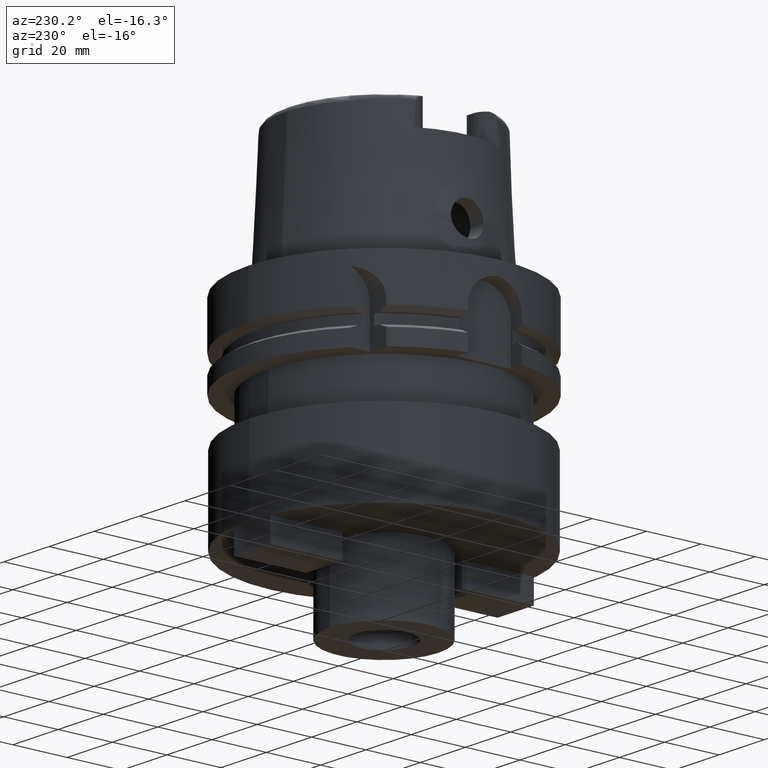
[diagram: clean part render]
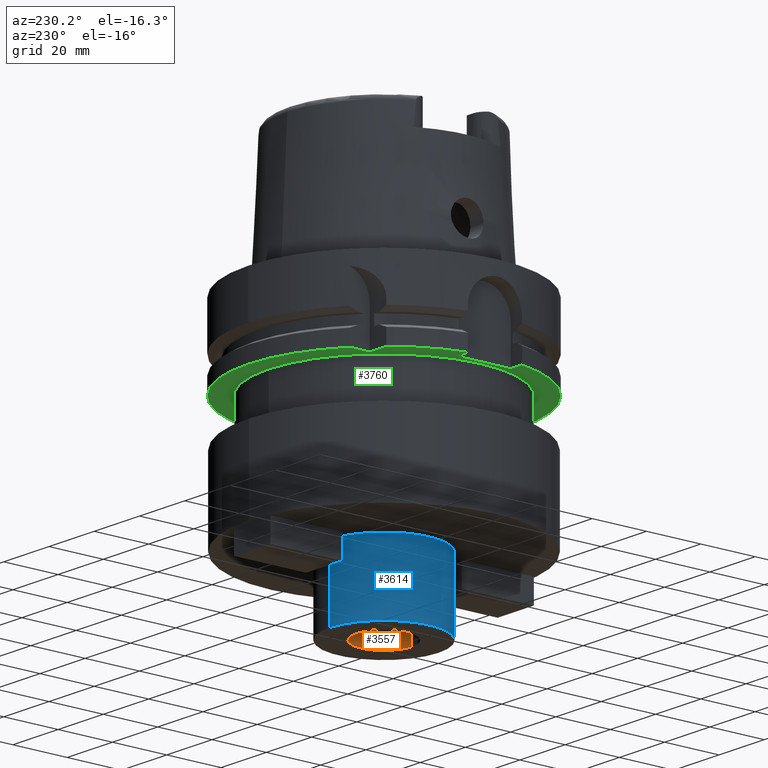
[diagram: same view with three faces highlighted in distinct colors, each labeled with its STEP entity id]
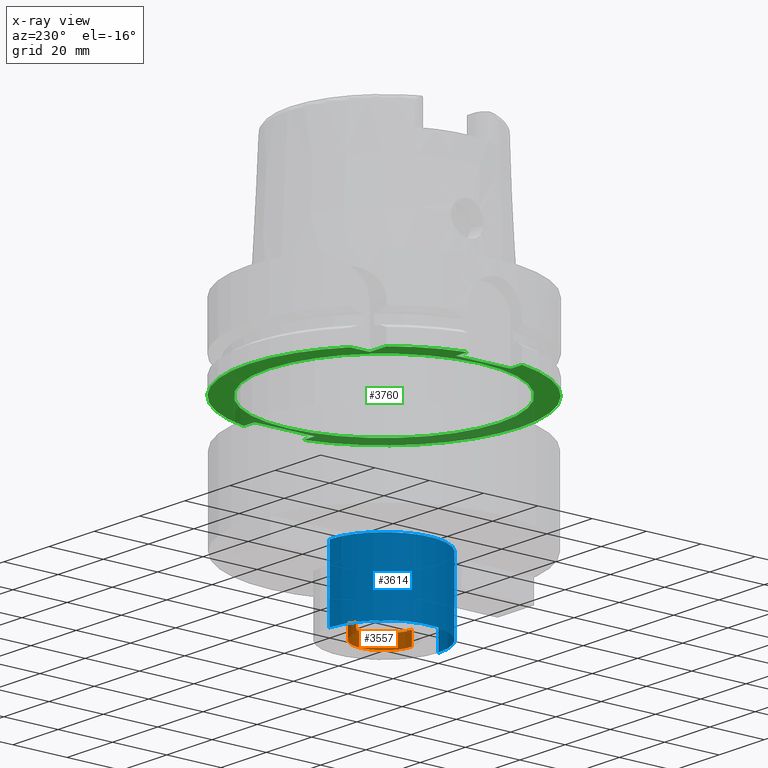
[diagram: x-ray of the same camera — body ghosted, the three highlighted faces saturated]
A machine part, auxiliary view with three faces highlighted in distinct colors.
The next image is the same camera in x-ray (body ghosted, the three faces saturated) — at least one of them is partly hidden behind the body in this view.
Their STEP definitions:

[orange] entity #3557 — the highlighted cylindrical surface (edge-blend (fillet) strip) has radius 10.25 mm, axis along (0, 0, -1).
#1108=CARTESIAN_POINT('',(0.E0,1.929431032057E-14,-9.6E1));
#1109=DIRECTION('',(0.E0,0.E0,1.E0));
#1110=DIRECTION('',(0.E0,-1.E0,0.E0));
#1111=AXIS2_PLACEMENT_3D('',#1108,#1109,#1110);
#1140=DIRECTION('',(0.E0,0.E0,1.E0));
#1141=VECTOR('',#1140,5.E0);
#1142=CARTESIAN_POINT('',(0.E0,1.025E1,-1.01E2));
#1143=LINE('',#1142,#1141);
#1147=DIRECTION('',(0.E0,0.E0,1.E0));
#1148=VECTOR('',#1147,5.E0);
#1149=CARTESIAN_POINT('',(0.E0,-1.025E1,-1.01E2));
#1150=LINE('',#1149,#1148);
#1178=CARTESIAN_POINT('',(0.E0,1.929431032057E-14,-1.01E2));
#1179=DIRECTION('',(0.E0,0.E0,-1.E0));
#1180=DIRECTION('',(0.E0,1.E0,0.E0));
#1181=AXIS2_PLACEMENT_3D('',#1178,#1179,#1180);
#2600=CARTESIAN_POINT('',(0.E0,-1.025E1,-1.01E2));
#2601=CARTESIAN_POINT('',(0.E0,1.025E1,-1.01E2));
#2602=VERTEX_POINT('',#2600);
#2603=VERTEX_POINT('',#2601);
#2604=CARTESIAN_POINT('',(0.E0,1.025E1,-9.6E1));
#2605=VERTEX_POINT('',#2604);
#2606=CARTESIAN_POINT('',(0.E0,-1.025E1,-9.6E1));
#2607=VERTEX_POINT('',#2606);
#3543=CARTESIAN_POINT('',(0.E0,1.929431032057E-14,5.755E1));
#3544=DIRECTION('',(0.E0,0.E0,-1.E0));
#3545=DIRECTION('',(0.E0,-1.E0,0.E0));
#3546=AXIS2_PLACEMENT_3D('',#3543,#3544,#3545);
#3547=CYLINDRICAL_SURFACE('',#3546,1.025E1);
#3549=ORIENTED_EDGE('',*,*,#3548,.T.);
#3550=ORIENTED_EDGE('',*,*,#3532,.F.);
#3552=ORIENTED_EDGE('',*,*,#3551,.F.);
#3554=ORIENTED_EDGE('',*,*,#3553,.F.);
#3555=EDGE_LOOP('',(#3549,#3550,#3552,#3554));
#3556=FACE_OUTER_BOUND('',#3555,.F.);
#1112=CIRCLE('',#1111,1.025E1);
#1182=CIRCLE('',#1181,1.025E1);
#3532=EDGE_CURVE('',#2607,#2605,#1112,.T.);
#3548=EDGE_CURVE('',#2603,#2605,#1143,.T.);
#3551=EDGE_CURVE('',#2602,#2607,#1150,.T.);
#3553=EDGE_CURVE('',#2603,#2602,#1182,.T.);
#3557=ADVANCED_FACE('',(#3556),#3547,.F.);

[blue] entity #3614 — the highlighted cylindrical surface (partial cylindrical patch) has radius 20 mm, axis along (0, 0, -1).
#1162=CARTESIAN_POINT('',(0.E0,1.929431032057E-14,-1.01E2));
#1163=DIRECTION('',(0.E0,0.E0,1.E0));
#1164=DIRECTION('',(0.E0,1.E0,0.E0));
#1165=AXIS2_PLACEMENT_3D('',#1162,#1163,#1164);
#1186=DIRECTION('',(0.E0,0.E0,-1.E0));
#1187=VECTOR('',#1186,2.6E1);
#1188=CARTESIAN_POINT('',(0.E0,2.E1,-7.5E1));
#1189=LINE('',#1188,#1187);
#1193=DIRECTION('',(0.E0,0.E0,-1.E0));
#1194=VECTOR('',#1193,2.6E1);
#1195=CARTESIAN_POINT('',(0.E0,-2.E1,-7.5E1));
#1196=LINE('',#1195,#1194);
#1216=CARTESIAN_POINT('',(0.E0,1.929431032057E-14,-7.5E1));
#1217=DIRECTION('',(0.E0,0.E0,-1.E0));
#1218=DIRECTION('',(0.E0,-1.E0,0.E0));
#1219=AXIS2_PLACEMENT_3D('',#1216,#1217,#1218);
#2576=CARTESIAN_POINT('',(0.E0,-2.E1,-7.5E1));
#2577=CARTESIAN_POINT('',(0.E0,2.E1,-7.5E1));
#2578=VERTEX_POINT('',#2576);
#2579=VERTEX_POINT('',#2577);
#2596=CARTESIAN_POINT('',(0.E0,2.E1,-1.01E2));
#2597=VERTEX_POINT('',#2596);
#2598=CARTESIAN_POINT('',(0.E0,-2.E1,-1.01E2));
#2599=VERTEX_POINT('',#2598);
#3602=CARTESIAN_POINT('',(0.E0,1.929431032057E-14,5.755E1));
#3603=DIRECTION('',(0.E0,0.E0,-1.E0));
#3604=DIRECTION('',(0.E0,-1.E0,0.E0));
#3605=AXIS2_PLACEMENT_3D('',#3602,#3603,#3604);
#3606=CYLINDRICAL_SURFACE('',#3605,2.E1);
#3607=ORIENTED_EDGE('',*,*,#3592,.F.);
#3609=ORIENTED_EDGE('',*,*,#3608,.F.);
#3610=ORIENTED_EDGE('',*,*,#3595,.T.);
#3611=ORIENTED_EDGE('',*,*,#3578,.F.);
#3612=EDGE_LOOP('',(#3607,#3609,#3610,#3611));
#3613=FACE_OUTER_BOUND('',#3612,.F.);
#1166=CIRCLE('',#1165,2.E1);
#1220=CIRCLE('',#1219,2.E1);
#3578=EDGE_CURVE('',#2597,#2599,#1166,.T.);
#3592=EDGE_CURVE('',#2579,#2597,#1189,.T.);
#3595=EDGE_CURVE('',#2578,#2599,#1196,.T.);
#3608=EDGE_CURVE('',#2578,#2579,#1220,.T.);
#3614=ADVANCED_FACE('',(#3613),#3606,.T.);

[green] entity #3760 — the highlighted planar face has unit normal (0, 0, -1).
#1320=DIRECTION('',(-1.E0,-4.798503851106E-14,0.E0));
#1321=VECTOR('',#1320,7.329756630709E0);
#1322=CARTESIAN_POINT('',(-3.15E1,3.15E1,-2.9E1));
#1323=LINE('',#1322,#1321);
#1327=CARTESIAN_POINT('',(0.E0,1.929431032057E-14,-2.9E1));
#1328=DIRECTION('',(0.E0,0.E0,1.E0));
#1329=DIRECTION('',(-7.765951326142E-1,6.3E-1,0.E0));
#1330=AXIS2_PLACEMENT_3D('',#1327,#1328,#1329);
#1335=DIRECTION('',(-1.E0,-4.627973610177E-14,0.E0));
#1336=VECTOR('',#1335,4.989794855662E0);
#1337=CARTESIAN_POINT('',(-4.4E1,-1.E1,-2.9E1));
#1338=LINE('',#1337,#1336);
#1342=CARTESIAN_POINT('',(0.E0,1.929431032057E-14,-2.9E1));
#1343=DIRECTION('',(0.E0,0.E0,1.E0));
#1344=DIRECTION('',(-9.797958971133E-1,-2.E-1,0.E0));
#1345=AXIS2_PLACEMENT_3D('',#1342,#1343,#1344);
#1350=CARTESIAN_POINT('',(0.E0,1.929431032057E-14,-2.9E1));
#1351=DIRECTION('',(0.E0,0.E0,1.E0));
#1352=DIRECTION('',(0.E0,-1.E0,0.E0));
#1353=AXIS2_PLACEMENT_3D('',#1350,#1351,#1352);
#1358=DIRECTION('',(1.E0,-1.897263253749E-14,0.E0));
#1359=VECTOR('',#1358,4.774993593029E0);
#1360=CARTESIAN_POINT('',(4.4E1,1.1E1,-2.9E1));
#1361=LINE('',#1360,#1359);
#1365=CARTESIAN_POINT('',(0.E0,1.929431032057E-14,-2.9E1));
#1366=DIRECTION('',(0.E0,0.E0,1.E0));
#1367=DIRECTION('',(9.754998718606E-1,2.2E-1,0.E0));
#1368=AXIS2_PLACEMENT_3D('',#1365,#1366,#1367);
#1373=CARTESIAN_POINT('',(0.E0,1.929431032057E-14,-2.9E1));
#1374=DIRECTION('',(0.E0,0.E0,1.E0));
#1375=DIRECTION('',(0.E0,1.E0,0.E0));
#1376=AXIS2_PLACEMENT_3D('',#1373,#1374,#1375);
#1381=CARTESIAN_POINT('',(0.E0,1.929431032057E-14,-2.9E1));
#1382=DIRECTION('',(0.E0,0.E0,-1.E0));
#1383=DIRECTION('',(0.E0,-1.E0,0.E0));
#1384=AXIS2_PLACEMENT_3D('',#1381,#1382,#1383);
#1389=CARTESIAN_POINT('',(0.E0,1.929431032057E-14,-2.9E1));
#1390=DIRECTION('',(0.E0,0.E0,-1.E0));
#1391=DIRECTION('',(0.E0,1.E0,0.E0));
#1392=AXIS2_PLACEMENT_3D('',#1389,#1390,#1391);
#1397=DIRECTION('',(4.798503851106E-14,1.E0,0.E0));
#1398=VECTOR('',#1397,7.329756630709E0);
#1399=CARTESIAN_POINT('',(-3.15E1,3.15E1,-2.9E1));
#1400=LINE('',#1399,#1398);
#1450=DIRECTION('',(0.E0,-1.E0,0.E0));
#1451=VECTOR('',#1450,2.2E1);
#1452=CARTESIAN_POINT('',(4.4E1,1.1E1,-2.9E1));
#1453=LINE('',#1452,#1451);
#1494=DIRECTION('',(1.E0,1.897263253749E-14,0.E0));
#1495=VECTOR('',#1494,4.774993593029E0);
#1496=CARTESIAN_POINT('',(4.4E1,-1.1E1,-2.9E1));
#1497=LINE('',#1496,#1495);
#1536=DIRECTION('',(0.E0,1.E0,0.E0));
#1537=VECTOR('',#1536,2.E1);
#1538=CARTESIAN_POINT('',(-4.4E1,-1.E1,-2.9E1));
#1539=LINE('',#1538,#1537);
#1559=DIRECTION('',(-1.E0,4.627973610177E-14,0.E0));
#1560=VECTOR('',#1559,4.989794855662E0);
#1561=CARTESIAN_POINT('',(-4.4E1,1.E1,-2.9E1));
#1562=LINE('',#1561,#1560);
#2523=CARTESIAN_POINT('',(-3.15E1,3.15E1,-2.9E1));
#2524=CARTESIAN_POINT('',(-3.15E1,3.882975663071E1,-2.9E1));
#2525=VERTEX_POINT('',#2523);
#2526=VERTEX_POINT('',#2524);
#2538=CARTESIAN_POINT('',(-3.882975663071E1,3.15E1,-2.9E1));
#2539=VERTEX_POINT('',#2538);
#2540=CARTESIAN_POINT('',(-4.898979485566E1,1.E1,-2.9E1));
#2541=VERTEX_POINT('',#2540);
#2542=CARTESIAN_POINT('',(-4.4E1,1.E1,-2.9E1));
#2543=VERTEX_POINT('',#2542);
#2544=CARTESIAN_POINT('',(-4.4E1,-1.E1,-2.9E1));
#2545=VERTEX_POINT('',#2544);
#2546=CARTESIAN_POINT('',(-4.898979485566E1,-1.E1,-2.9E1));
#2547=VERTEX_POINT('',#2546);
#2548=CARTESIAN_POINT('',(-3.871601495257E-14,-5.E1,-2.9E1));
#2549=CARTESIAN_POINT('',(4.877499359303E1,-1.1E1,-2.9E1));
#2550=VERTEX_POINT('',#2548);
#2551=VERTEX_POINT('',#2549);
#2552=CARTESIAN_POINT('',(4.4E1,-1.1E1,-2.9E1));
#2553=VERTEX_POINT('',#2552);
#2554=CARTESIAN_POINT('',(4.4E1,1.1E1,-2.9E1));
#2555=VERTEX_POINT('',#2554);
#2556=CARTESIAN_POINT('',(4.877499359303E1,1.1E1,-2.9E1));
#2557=VERTEX_POINT('',#2556);
#2558=CARTESIAN_POINT('',(-6.019535474874E-14,5.E1,-2.9E1));
#2559=VERTEX_POINT('',#2558);
#2560=CARTESIAN_POINT('',(0.E0,-4.25E1,-2.9E1));
#2561=CARTESIAN_POINT('',(0.E0,4.25E1,-2.9E1));
#2562=VERTEX_POINT('',#2560);
#2563=VERTEX_POINT('',#2561);
#3723=CARTESIAN_POINT('',(0.E0,0.E0,-2.9E1));
#3724=DIRECTION('',(0.E0,0.E0,-1.E0));
#3725=DIRECTION('',(0.E0,-1.E0,0.E0));
#3726=AXIS2_PLACEMENT_3D('',#3723,#3724,#3725);
#3727=PLANE('',#3726);
#3729=ORIENTED_EDGE('',*,*,#3728,.F.);
#3731=ORIENTED_EDGE('',*,*,#3730,.T.);
#3733=ORIENTED_EDGE('',*,*,#3732,.T.);
#3735=ORIENTED_EDGE('',*,*,#3734,.F.);
#3737=ORIENTED_EDGE('',*,*,#3736,.F.);
#3739=ORIENTED_EDGE('',*,*,#3738,.T.);
#3741=ORIENTED_EDGE('',*,*,#3740,.T.);
#3743=ORIENTED_EDGE('',*,*,#3742,.T.);
#3745=ORIENTED_EDGE('',*,*,#3744,.F.);
#3747=ORIENTED_EDGE('',*,*,#3746,.F.);
#3749=ORIENTED_EDGE('',*,*,#3748,.T.);
#3751=ORIENTED_EDGE('',*,*,#3750,.T.);
#3753=ORIENTED_EDGE('',*,*,#3752,.T.);
#3754=EDGE_LOOP('',(#3729,#3731,#3733,#3735,#3737,#3739,#3741,#3743,#3745,#3747,
#3749,#3751,#3753));
#3755=FACE_OUTER_BOUND('',#3754,.F.);
#3756=ORIENTED_EDGE('',*,*,#3716,.T.);
#3757=ORIENTED_EDGE('',*,*,#3705,.T.);
#3758=EDGE_LOOP('',(#3756,#3757));
#3759=FACE_BOUND('',#3758,.F.);
#1331=CIRCLE('',#1330,5.E1);
#1346=CIRCLE('',#1345,5.E1);
#1354=CIRCLE('',#1353,5.E1);
#1369=CIRCLE('',#1368,5.E1);
#1377=CIRCLE('',#1376,5.E1);
#1385=CIRCLE('',#1384,4.25E1);
#1393=CIRCLE('',#1392,4.25E1);
#3705=EDGE_CURVE('',#2563,#2562,#1393,.T.);
#3716=EDGE_CURVE('',#2562,#2563,#1385,.T.);
#3728=EDGE_CURVE('',#2525,#2526,#1400,.T.);
#3730=EDGE_CURVE('',#2525,#2539,#1323,.T.);
#3732=EDGE_CURVE('',#2539,#2541,#1331,.T.);
#3734=EDGE_CURVE('',#2543,#2541,#1562,.T.);
#3736=EDGE_CURVE('',#2545,#2543,#1539,.T.);
#3738=EDGE_CURVE('',#2545,#2547,#1338,.T.);
#3740=EDGE_CURVE('',#2547,#2550,#1346,.T.);
#3742=EDGE_CURVE('',#2550,#2551,#1354,.T.);
#3744=EDGE_CURVE('',#2553,#2551,#1497,.T.);
#3746=EDGE_CURVE('',#2555,#2553,#1453,.T.);
#3748=EDGE_CURVE('',#2555,#2557,#1361,.T.);
#3750=EDGE_CURVE('',#2557,#2559,#1369,.T.);
#3752=EDGE_CURVE('',#2559,#2526,#1377,.T.);
#3760=ADVANCED_FACE('',(#3755,#3759),#3727,.T.);